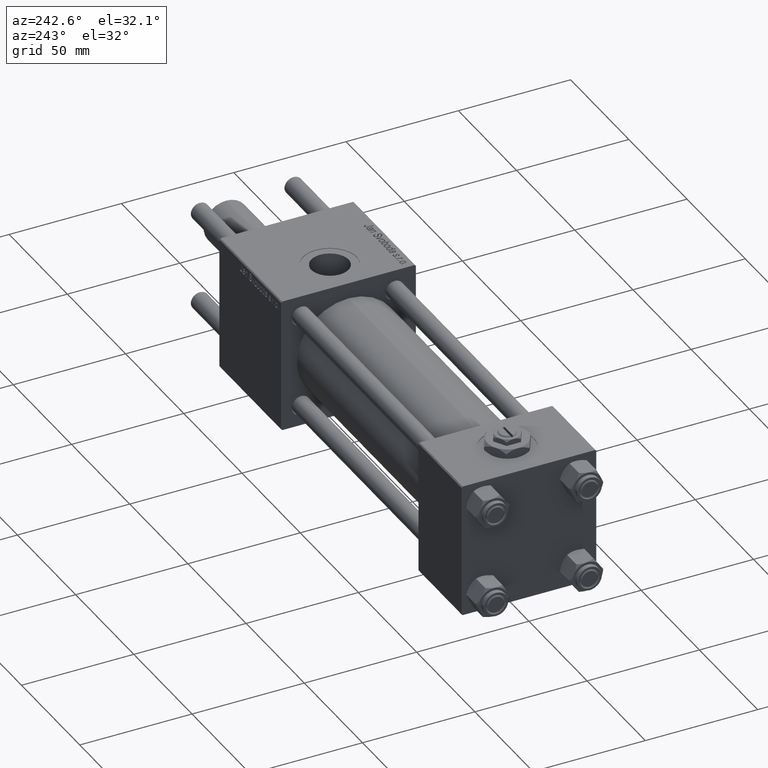
[diagram: clean part render]
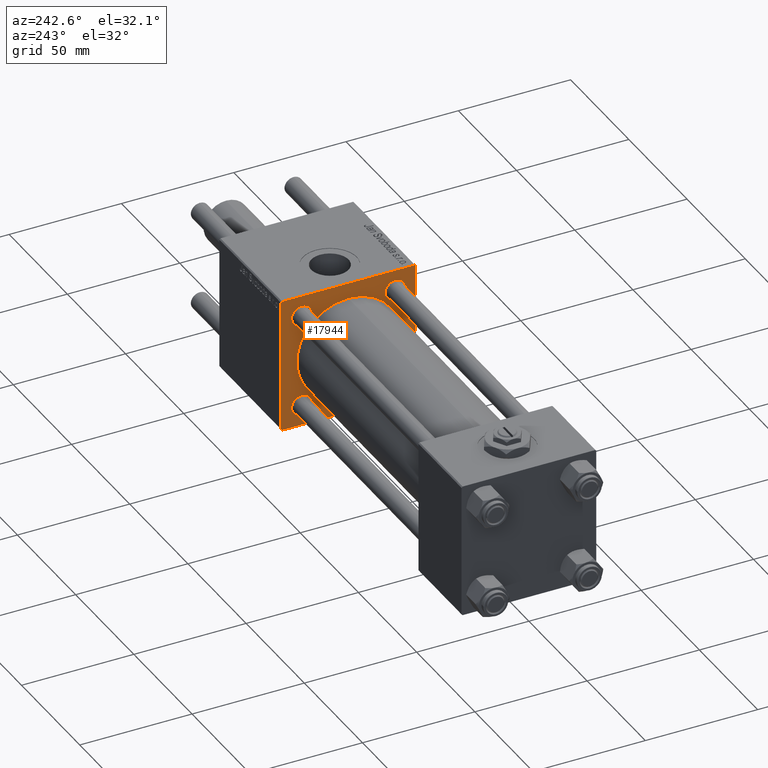
[diagram: same view with one face highlighted and labeled with its STEP entity id]
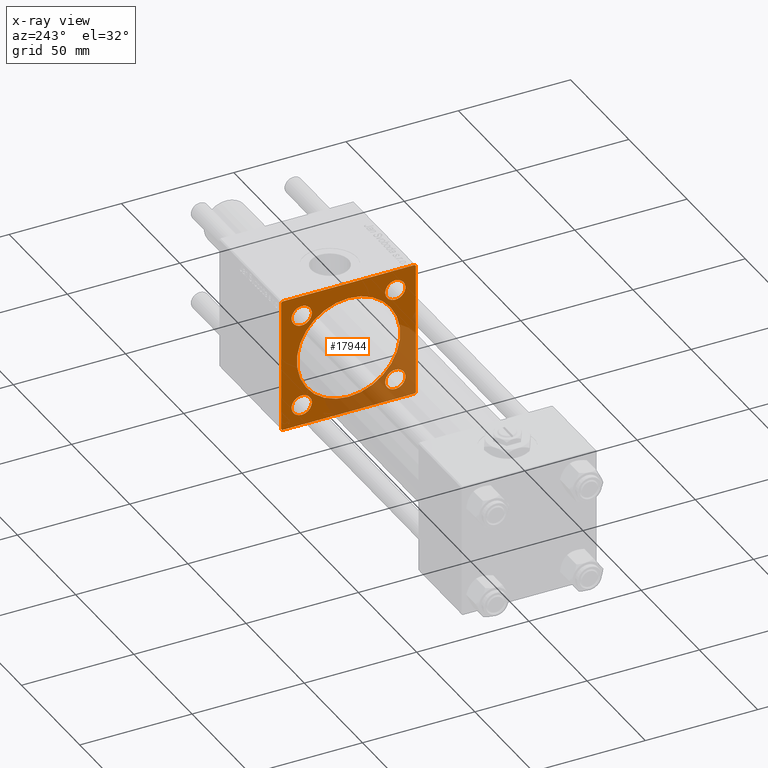
[diagram: x-ray of the same camera — body ghosted, the highlighted face saturated]
A machine part, auxiliary view. The second image highlights one B-rep face of the part: STEP entity #17944.
The next image is the same camera in x-ray: the body ghosted, the highlighted face saturated — about 30% of this face is hidden behind the body in this view.
In plain terms, the highlighted planar face has unit normal (-1, 0, 0).
Its self-contained STEP definition (entity closure, byte-faithful):
#60 = ORIENTED_EDGE ( 'NONE', *, *, #55050, .T. ) ;
#121 = DIRECTION ( 'NONE',  ( 0.000000000000000000, 0.000000000000000000, 1.000000000000000000 ) ) ;
#573 = AXIS2_PLACEMENT_3D ( 'NONE', #18085, #22872, #41171 ) ;
#1614 = FACE_BOUND ( 'NONE', #53375, .T. ) ;
#1634 = DIRECTION ( 'NONE',  ( 1.000000000000000000, -0.000000000000000000, 0.000000000000000000 ) ) ;
#1712 = DIRECTION ( 'NONE',  ( 1.000000000000000000, -0.000000000000000000, 0.000000000000000000 ) ) ;
#1813 = CIRCLE ( 'NONE', #57461, 4.500000000000003553 ) ;
#2261 = ORIENTED_EDGE ( 'NONE', *, *, #53590, .T. ) ;
#2611 = DIRECTION ( 'NONE',  ( 0.000000000000000000, 0.000000000000000000, 1.000000000000000000 ) ) ;
#2724 = AXIS2_PLACEMENT_3D ( 'NONE', #11476, #10287, #29488 ) ;
#2752 = EDGE_CURVE ( 'NONE', #30984, #15601, #31298, .T. ) ;
#3058 = EDGE_LOOP ( 'NONE', ( #10679, #10313 ) ) ;
#4390 = CARTESIAN_POINT ( 'NONE',  ( 155.0000000000000000, 29.50000000000002487, 30.00000000000000000 ) ) ;
#4920 = DIRECTION ( 'NONE',  ( 1.000000000000000000, -0.000000000000000000, 0.000000000000000000 ) ) ;
#5153 = DIRECTION ( 'NONE',  ( 0.000000000000000000, 0.000000000000000000, 1.000000000000000000 ) ) ;
#5262 = VECTOR ( 'NONE', #14919, 1000.000000000000000 ) ;
#6271 = DIRECTION ( 'NONE',  ( 0.000000000000000000, 0.000000000000000000, 1.000000000000000000 ) ) ;
#6419 = FACE_BOUND ( 'NONE', #3058, .T. ) ;
#6453 = VECTOR ( 'NONE', #53424, 1000.000000000000114 ) ;
#6872 = VERTEX_POINT ( 'NONE', #57335 ) ;
#7243 = VECTOR ( 'NONE', #18570, 1000.000000000000000 ) ;
#8318 = DIRECTION ( 'NONE',  ( 0.000000000000000000, -1.000000000000000000, -1.156482317317871478E-16 ) ) ;
#9762 = CARTESIAN_POINT ( 'NONE',  ( 155.0000000000000000, 20.84999999999999787, 25.35000000000000497 ) ) ;
#9910 = CARTESIAN_POINT ( 'NONE',  ( 155.0000000000000000, -20.84999999999999076, 16.35000000000000142 ) ) ;
#10287 = DIRECTION ( 'NONE',  ( 1.000000000000000000, -0.000000000000000000, 0.000000000000000000 ) ) ;
#10313 = ORIENTED_EDGE ( 'NONE', *, *, #29883, .T. ) ;
#10679 = ORIENTED_EDGE ( 'NONE', *, *, #28648, .T. ) ;
#10809 = EDGE_CURVE ( 'NONE', #52870, #15601, #47390, .T. ) ;
#11476 = CARTESIAN_POINT ( 'NONE',  ( 155.0000000000000000, -20.84999999999999076, 20.85000000000000497 ) ) ;
#11806 = CARTESIAN_POINT ( 'NONE',  ( 155.0000000000000000, -2.602085213965210642E-15, 23.00000000000000000 ) ) ;
#11857 = VECTOR ( 'NONE', #48418, 1000.000000000000000 ) ;
#12762 = ORIENTED_EDGE ( 'NONE', *, *, #42253, .T. ) ;
#12885 = CARTESIAN_POINT ( 'NONE',  ( 155.0000000000000000, -20.84999999999999076, -20.85000000000000497 ) ) ;
#13058 = VERTEX_POINT ( 'NONE', #9910 ) ;
#13348 = CARTESIAN_POINT ( 'NONE',  ( 155.0000000000000000, -30.00000000000000000, -29.50000000000001066 ) ) ;
#14276 = CARTESIAN_POINT ( 'NONE',  ( 155.0000000000000000, 20.84999999999999787, 20.85000000000000142 ) ) ;
#14304 = DIRECTION ( 'NONE',  ( 1.000000000000000000, 0.000000000000000000, 0.000000000000000000 ) ) ;
#14919 = DIRECTION ( 'NONE',  ( 0.000000000000000000, -1.000000000000000000, -1.156482317317871478E-16 ) ) ;
#15200 = EDGE_CURVE ( 'NONE', #23930, #13058, #40489, .T. ) ;
#15521 = EDGE_LOOP ( 'NONE', ( #60, #39479 ) ) ;
#15601 = VERTEX_POINT ( 'NONE', #13348 ) ;
#15816 = CARTESIAN_POINT ( 'NONE',  ( 155.0000000000000000, 30.00000000000000000, 30.00000000000000000 ) ) ;
#16662 = LINE ( 'NONE', #43961, #57378 ) ;
#16737 = LINE ( 'NONE', #35041, #54543 ) ;
#16814 = DIRECTION ( 'NONE',  ( 0.000000000000000000, 0.000000000000000000, 1.000000000000000000 ) ) ;
#16829 = CARTESIAN_POINT ( 'NONE',  ( 155.0000000000000000, 29.74999999999999645, -29.74999999999999645 ) ) ;
#17454 = VERTEX_POINT ( 'NONE', #28263 ) ;
#17577 = ORIENTED_EDGE ( 'NONE', *, *, #56435, .T. ) ;
#17944 = ADVANCED_FACE ( 'NONE', ( #42725, #19337, #47833, #1614, #6419, #20220 ), #24132, .T. ) ;
#18085 = CARTESIAN_POINT ( 'NONE',  ( 155.0000000000000000, -2.602085213965210642E-15, 0.000000000000000000 ) ) ;
#18570 = DIRECTION ( 'NONE',  ( 0.000000000000000000, 0.000000000000000000, -1.000000000000000000 ) ) ;
#19294 = CARTESIAN_POINT ( 'NONE',  ( 155.0000000000000000, 30.00000000000000000, 29.50000000000002487 ) ) ;
#19337 = FACE_BOUND ( 'NONE', #41903, .T. ) ;
#19784 = CARTESIAN_POINT ( 'NONE',  ( 155.0000000000000000, -29.75000000000001776, -29.75000000000001776 ) ) ;
#20220 = FACE_OUTER_BOUND ( 'NONE', #27018, .T. ) ;
#20301 = LINE ( 'NONE', #15816, #5262 ) ;
#20578 = EDGE_CURVE ( 'NONE', #50071, #45022, #57917, .T. ) ;
#20620 = CARTESIAN_POINT ( 'NONE',  ( 155.0000000000000000, -20.84999999999999076, -20.85000000000000497 ) ) ;
#20738 = VERTEX_POINT ( 'NONE', #27311 ) ;
#21348 = EDGE_CURVE ( 'NONE', #56579, #6872, #20301, .T. ) ;
#22872 = DIRECTION ( 'NONE',  ( 1.000000000000000000, 0.000000000000000000, 0.000000000000000000 ) ) ;
#23930 = VERTEX_POINT ( 'NONE', #56761 ) ;
#24007 = DIRECTION ( 'NONE',  ( 0.000000000000000000, 0.7071067811865474617, -0.7071067811865474617 ) ) ;
#24132 = PLANE ( 'NONE',  #57836 ) ;
#24214 = ORIENTED_EDGE ( 'NONE', *, *, #2752, .F. ) ;
#24510 = ORIENTED_EDGE ( 'NONE', *, *, #32984, .T. ) ;
#25521 = AXIS2_PLACEMENT_3D ( 'NONE', #45031, #40531, #6271 ) ;
#26470 = CIRCLE ( 'NONE', #573, 23.00000000000000000 ) ;
#27018 = EDGE_LOOP ( 'NONE', ( #17577, #49829, #24214, #46968, #46268, #12762, #56508, #24510 ) ) ;
#27311 = CARTESIAN_POINT ( 'NONE',  ( 155.0000000000000000, 20.84999999999999787, -16.34999999999999787 ) ) ;
#27328 = LINE ( 'NONE', #41715, #30333 ) ;
#27365 = EDGE_CURVE ( 'NONE', #53592, #40596, #50371, .T. ) ;
#27936 = CARTESIAN_POINT ( 'NONE',  ( 155.0000000000000000, -20.84999999999999076, -16.35000000000000142 ) ) ;
#28226 = AXIS2_PLACEMENT_3D ( 'NONE', #28561, #46864, #5153 ) ;
#28263 = CARTESIAN_POINT ( 'NONE',  ( 155.0000000000000000, 29.50000000000000000, -29.99999999999999289 ) ) ;
#28561 = CARTESIAN_POINT ( 'NONE',  ( 155.0000000000000000, 20.84999999999999787, 20.85000000000000142 ) ) ;
#28648 = EDGE_CURVE ( 'NONE', #40623, #56859, #54256, .T. ) ;
#28827 = DIRECTION ( 'NONE',  ( 1.000000000000000000, -0.000000000000000000, 0.000000000000000000 ) ) ;
#29488 = DIRECTION ( 'NONE',  ( 0.000000000000000000, 0.000000000000000000, 1.000000000000000000 ) ) ;
#29883 = EDGE_CURVE ( 'NONE', #56859, #40623, #26470, .T. ) ;
#30030 = LINE ( 'NONE', #16829, #6453 ) ;
#30123 = CARTESIAN_POINT ( 'NONE',  ( 155.0000000000000000, -30.00000000000000000, 29.99999999999999289 ) ) ;
#30297 = CIRCLE ( 'NONE', #49477, 4.500000000000003553 ) ;
#30333 = VECTOR ( 'NONE', #24007, 1000.000000000000114 ) ;
#30487 = EDGE_CURVE ( 'NONE', #52713, #20738, #42772, .T. ) ;
#30714 = CARTESIAN_POINT ( 'NONE',  ( 155.0000000000000000, 30.00000000000000000, -29.49999999999997868 ) ) ;
#30984 = VERTEX_POINT ( 'NONE', #34412 ) ;
#31298 = LINE ( 'NONE', #30123, #11857 ) ;
#32051 = ORIENTED_EDGE ( 'NONE', *, *, #35780, .T. ) ;
#32519 = CARTESIAN_POINT ( 'NONE',  ( 155.0000000000000000, 2.146024240737016609E-16, -23.00000000000000000 ) ) ;
#32984 = EDGE_CURVE ( 'NONE', #40596, #17454, #30030, .T. ) ;
#33000 = DIRECTION ( 'NONE',  ( 0.000000000000000000, -0.7071067811865474617, 0.7071067811865474617 ) ) ;
#33139 = DIRECTION ( 'NONE',  ( -0.000000000000000000, 0.000000000000000000, 1.000000000000000000 ) ) ;
#33186 = CARTESIAN_POINT ( 'NONE',  ( 155.0000000000000000, 20.84999999999999787, -25.35000000000000497 ) ) ;
#33330 = CARTESIAN_POINT ( 'NONE',  ( 155.0000000000000000, -20.84999999999999076, 20.85000000000000497 ) ) ;
#34352 = CIRCLE ( 'NONE', #46805, 4.500000000000003553 ) ;
#34367 = DIRECTION ( 'NONE',  ( -0.000000000000000000, 0.7071067811865474617, 0.7071067811865474617 ) ) ;
#34412 = CARTESIAN_POINT ( 'NONE',  ( 155.0000000000000000, -30.00000000000000000, 29.50000000000001776 ) ) ;
#35041 = CARTESIAN_POINT ( 'NONE',  ( 155.0000000000000000, 30.00000000000000000, -29.99999999999999289 ) ) ;
#35780 = EDGE_CURVE ( 'NONE', #45022, #50071, #34352, .T. ) ;
#36702 = EDGE_CURVE ( 'NONE', #30984, #6872, #16662, .T. ) ;
#37032 = CARTESIAN_POINT ( 'NONE',  ( 155.0000000000000000, -29.50000000000002487, -30.00000000000000000 ) ) ;
#37109 = CARTESIAN_POINT ( 'NONE',  ( 155.0000000000000000, -2.602085213965210642E-15, 0.000000000000000000 ) ) ;
#39018 = CIRCLE ( 'NONE', #43775, 4.500000000000003553 ) ;
#39479 = ORIENTED_EDGE ( 'NONE', *, *, #30487, .T. ) ;
#40471 = EDGE_CURVE ( 'NONE', #47989, #58115, #30297, .T. ) ;
#40489 = CIRCLE ( 'NONE', #46261, 4.500000000000003553 ) ;
#40531 = DIRECTION ( 'NONE',  ( 1.000000000000000000, -0.000000000000000000, 0.000000000000000000 ) ) ;
#40596 = VERTEX_POINT ( 'NONE', #30714 ) ;
#40623 = VERTEX_POINT ( 'NONE', #11806 ) ;
#40736 = DIRECTION ( 'NONE',  ( 0.000000000000000000, 0.000000000000000000, -1.000000000000000000 ) ) ;
#41171 = DIRECTION ( 'NONE',  ( 0.000000000000000000, 0.000000000000000000, -1.000000000000000000 ) ) ;
#41715 = CARTESIAN_POINT ( 'NONE',  ( 155.0000000000000000, 29.75000000000001776, 29.75000000000001776 ) ) ;
#41796 = CARTESIAN_POINT ( 'NONE',  ( 155.0000000000000000, 20.84999999999999787, 16.34999999999999787 ) ) ;
#41903 = EDGE_LOOP ( 'NONE', ( #42419, #32051 ) ) ;
#42253 = EDGE_CURVE ( 'NONE', #56579, #53592, #27328, .T. ) ;
#42419 = ORIENTED_EDGE ( 'NONE', *, *, #20578, .T. ) ;
#42448 = DIRECTION ( 'NONE',  ( 0.000000000000000000, 0.000000000000000000, 1.000000000000000000 ) ) ;
#42725 = FACE_BOUND ( 'NONE', #55420, .T. ) ;
#42772 = CIRCLE ( 'NONE', #25521, 4.500000000000003553 ) ;
#43013 = ORIENTED_EDGE ( 'NONE', *, *, #43265, .T. ) ;
#43265 = EDGE_CURVE ( 'NONE', #58115, #47989, #39018, .T. ) ;
#43775 = AXIS2_PLACEMENT_3D ( 'NONE', #12885, #49493, #16814 ) ;
#43961 = CARTESIAN_POINT ( 'NONE',  ( 155.0000000000000000, -29.75000000000001066, 29.75000000000001066 ) ) ;
#45022 = VERTEX_POINT ( 'NONE', #41796 ) ;
#45031 = CARTESIAN_POINT ( 'NONE',  ( 155.0000000000000000, 20.84999999999999787, -20.85000000000000142 ) ) ;
#45162 = VECTOR ( 'NONE', #33000, 1000.000000000000114 ) ;
#45293 = CARTESIAN_POINT ( 'NONE',  ( 155.0000000000000000, 30.00000000000000000, 30.00000000000000000 ) ) ;
#46261 = AXIS2_PLACEMENT_3D ( 'NONE', #33330, #28827, #55522 ) ;
#46268 = ORIENTED_EDGE ( 'NONE', *, *, #21348, .F. ) ;
#46805 = AXIS2_PLACEMENT_3D ( 'NONE', #14276, #1634, #42448 ) ;
#46864 = DIRECTION ( 'NONE',  ( 1.000000000000000000, -0.000000000000000000, 0.000000000000000000 ) ) ;
#46968 = ORIENTED_EDGE ( 'NONE', *, *, #36702, .T. ) ;
#47390 = LINE ( 'NONE', #19784, #45162 ) ;
#47833 = FACE_BOUND ( 'NONE', #15521, .T. ) ;
#47989 = VERTEX_POINT ( 'NONE', #27936 ) ;
#48418 = DIRECTION ( 'NONE',  ( 0.000000000000000000, 0.000000000000000000, -1.000000000000000000 ) ) ;
#49477 = AXIS2_PLACEMENT_3D ( 'NONE', #20620, #1712, #2611 ) ;
#49493 = DIRECTION ( 'NONE',  ( 1.000000000000000000, -0.000000000000000000, 0.000000000000000000 ) ) ;
#49829 = ORIENTED_EDGE ( 'NONE', *, *, #10809, .T. ) ;
#49988 = ORIENTED_EDGE ( 'NONE', *, *, #15200, .T. ) ;
#50071 = VERTEX_POINT ( 'NONE', #9762 ) ;
#50371 = LINE ( 'NONE', #45293, #7243 ) ;
#50534 = CARTESIAN_POINT ( 'NONE',  ( 155.0000000000000000, 20.84999999999999787, -20.85000000000000142 ) ) ;
#51142 = CARTESIAN_POINT ( 'NONE',  ( 155.0000000000000000, 0.000000000000000000, 0.000000000000000000 ) ) ;
#51332 = AXIS2_PLACEMENT_3D ( 'NONE', #37109, #14304, #40736 ) ;
#52320 = DIRECTION ( 'NONE',  ( -1.000000000000000000, 0.000000000000000000, -0.000000000000000000 ) ) ;
#52713 = VERTEX_POINT ( 'NONE', #33186 ) ;
#52870 = VERTEX_POINT ( 'NONE', #37032 ) ;
#53375 = EDGE_LOOP ( 'NONE', ( #57522, #43013 ) ) ;
#53424 = DIRECTION ( 'NONE',  ( -0.000000000000000000, -0.7071067811865474617, -0.7071067811865474617 ) ) ;
#53590 = EDGE_CURVE ( 'NONE', #13058, #23930, #54464, .T. ) ;
#53592 = VERTEX_POINT ( 'NONE', #19294 ) ;
#53715 = CARTESIAN_POINT ( 'NONE',  ( 155.0000000000000000, -20.84999999999999076, -25.35000000000000853 ) ) ;
#54256 = CIRCLE ( 'NONE', #51332, 23.00000000000000000 ) ;
#54464 = CIRCLE ( 'NONE', #2724, 4.500000000000003553 ) ;
#54543 = VECTOR ( 'NONE', #8318, 1000.000000000000000 ) ;
#55050 = EDGE_CURVE ( 'NONE', #20738, #52713, #1813, .T. ) ;
#55420 = EDGE_LOOP ( 'NONE', ( #49988, #2261 ) ) ;
#55522 = DIRECTION ( 'NONE',  ( 0.000000000000000000, 0.000000000000000000, 1.000000000000000000 ) ) ;
#56435 = EDGE_CURVE ( 'NONE', #17454, #52870, #16737, .T. ) ;
#56508 = ORIENTED_EDGE ( 'NONE', *, *, #27365, .T. ) ;
#56579 = VERTEX_POINT ( 'NONE', #4390 ) ;
#56761 = CARTESIAN_POINT ( 'NONE',  ( 155.0000000000000000, -20.84999999999999076, 25.35000000000000853 ) ) ;
#56859 = VERTEX_POINT ( 'NONE', #32519 ) ;
#57335 = CARTESIAN_POINT ( 'NONE',  ( 155.0000000000000000, -29.50000000000002487, 29.99999999999999289 ) ) ;
#57378 = VECTOR ( 'NONE', #34367, 1000.000000000000114 ) ;
#57461 = AXIS2_PLACEMENT_3D ( 'NONE', #50534, #4920, #121 ) ;
#57522 = ORIENTED_EDGE ( 'NONE', *, *, #40471, .T. ) ;
#57836 = AXIS2_PLACEMENT_3D ( 'NONE', #51142, #52320, #33139 ) ;
#57917 = CIRCLE ( 'NONE', #28226, 4.500000000000003553 ) ;
#58115 = VERTEX_POINT ( 'NONE', #53715 ) ;